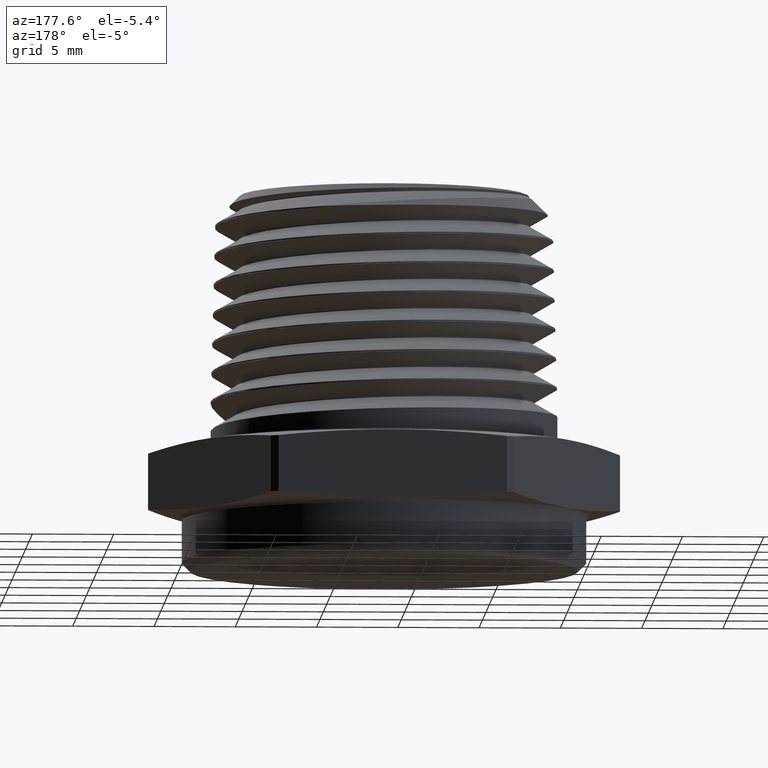
[diagram: clean part render]
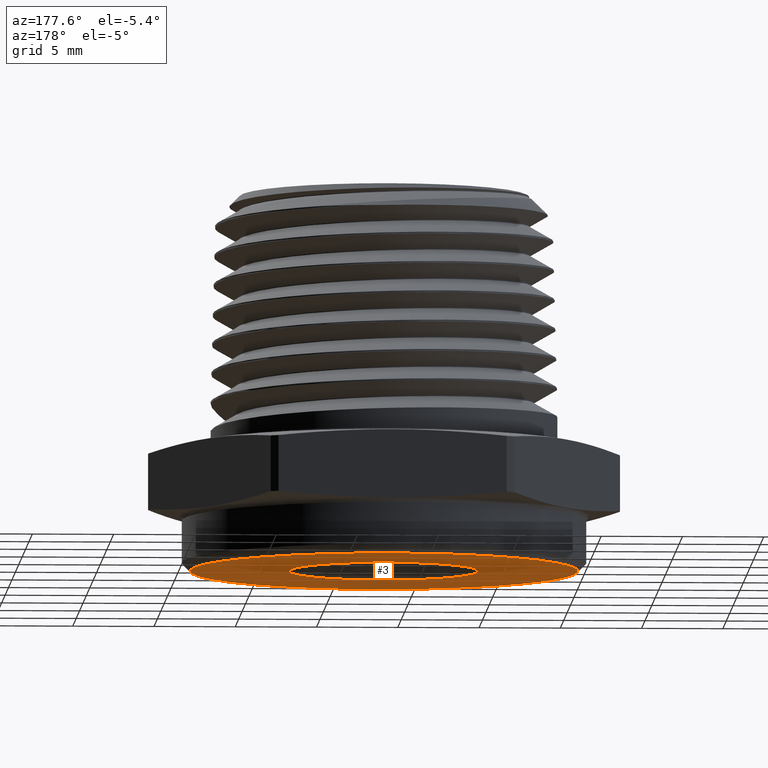
[diagram: same view with one face highlighted and labeled with its STEP entity id]
A machine part, auxiliary view. The second image highlights one B-rep face of the part: STEP entity #3.
In plain terms, the highlighted planar face has unit normal (0, 0, -1).
Its self-contained STEP definition (entity closure, byte-faithful):
#3 = ADVANCED_FACE ( 'NONE', ( #2597, #2602 ), #5188, .T. ) ;
#227 = VERTEX_POINT ( 'NONE', #4881 ) ;
#229 = VERTEX_POINT ( 'NONE', #4883 ) ;
#231 = VERTEX_POINT ( 'NONE', #4885 ) ;
#236 = VERTEX_POINT ( 'NONE', #4890 ) ;
#253 = EDGE_LOOP ( 'NONE', ( #3600, #3601 ) ) ;
#261 = EDGE_LOOP ( 'NONE', ( #3598, #3599 ) ) ;
#483 = CARTESIAN_POINT ( 'NONE',  ( 0.0000000000000000000, 0.0000000000000000000, -0.1300000000000000000 ) ) ;
#485 = DIRECTION ( 'NONE',  ( 0.0000000000000000000, 0.0000000000000000000, -1.000000000000000000 ) ) ;
#1549 = CARTESIAN_POINT ( 'NONE',  ( 1.510396341863000100E-018, 0.0000000000000000000, -0.1299999999999999800 ) ) ;
#1550 = DIRECTION ( 'NONE',  ( 0.0000000000000000000, 0.0000000000000000000, 1.000000000000000000 ) ) ;
#1551 = DIRECTION ( 'NONE',  ( 1.000000000000000000, 0.0000000000000000000, 0.0000000000000000000 ) ) ;
#1552 = CARTESIAN_POINT ( 'NONE',  ( 0.0000000000000000000, 0.0000000000000000000, -0.1300000000000000000 ) ) ;
#1553 = DIRECTION ( 'NONE',  ( 0.0000000000000000000, 0.0000000000000000000, -1.000000000000000000 ) ) ;
#1554 = DIRECTION ( 'NONE',  ( -1.000000000000000000, 0.0000000000000000000, 0.0000000000000000000 ) ) ;
#2062 = CARTESIAN_POINT ( 'NONE',  ( 1.510396341863000100E-018, 0.0000000000000000000, -0.1299999999999999800 ) ) ;
#2063 = DIRECTION ( 'NONE',  ( 0.0000000000000000000, 0.0000000000000000000, 1.000000000000000000 ) ) ;
#2064 = DIRECTION ( 'NONE',  ( 1.000000000000000000, 0.0000000000000000000, 0.0000000000000000000 ) ) ;
#2072 = CARTESIAN_POINT ( 'NONE',  ( 0.0000000000000000000, 0.0000000000000000000, -0.1300000000000000000 ) ) ;
#2073 = DIRECTION ( 'NONE',  ( 0.0000000000000000000, 0.0000000000000000000, -1.000000000000000000 ) ) ;
#2074 = DIRECTION ( 'NONE',  ( -1.000000000000000000, 0.0000000000000000000, 0.0000000000000000000 ) ) ;
#2597 = FACE_BOUND ( 'NONE', #261, .T. ) ;
#2602 = FACE_OUTER_BOUND ( 'NONE', #253, .T. ) ;
#2696 = CIRCLE ( 'NONE', #3066, 0.4700000000000011900 ) ;
#2699 = CIRCLE ( 'NONE', #3065, 0.2299999999999998400 ) ;
#2713 = CIRCLE ( 'NONE', #3070, 0.2299999999999998400 ) ;
#2722 = CIRCLE ( 'NONE', #3072, 0.4700000000000011900 ) ;
#3065 = AXIS2_PLACEMENT_3D ( 'NONE', #1549, #1550, #1551 ) ;
#3066 = AXIS2_PLACEMENT_3D ( 'NONE', #1552, #1553, #1554 ) ;
#3070 = AXIS2_PLACEMENT_3D ( 'NONE', #2062, #2063, #2064 ) ;
#3072 = AXIS2_PLACEMENT_3D ( 'NONE', #2072, #2073, #2074 ) ;
#3133 = EDGE_CURVE ( 'NONE', #229, #236, #2699, .T. ) ;
#3134 = EDGE_CURVE ( 'NONE', #227, #231, #2696, .T. ) ;
#3146 = EDGE_CURVE ( 'NONE', #236, #229, #2713, .T. ) ;
#3151 = EDGE_CURVE ( 'NONE', #231, #227, #2722, .T. ) ;
#3211 = AXIS2_PLACEMENT_3D ( 'NONE', #483, #485, #5237 ) ;
#3598 = ORIENTED_EDGE ( 'NONE', *, *, #3146, .T. ) ;
#3599 = ORIENTED_EDGE ( 'NONE', *, *, #3133, .T. ) ;
#3600 = ORIENTED_EDGE ( 'NONE', *, *, #3134, .T. ) ;
#3601 = ORIENTED_EDGE ( 'NONE', *, *, #3151, .T. ) ;
#4881 = CARTESIAN_POINT ( 'NONE',  ( 0.4700000000000011900, 0.0000000000000000000, -0.1300000000000000000 ) ) ;
#4883 = CARTESIAN_POINT ( 'NONE',  ( 0.2299999999999998400, 2.816687638038911700E-017, -0.1299999999999999800 ) ) ;
#4885 = CARTESIAN_POINT ( 'NONE',  ( -0.4700000000000011900, 5.878304635907303300E-017, -0.1300000000000000000 ) ) ;
#4890 = CARTESIAN_POINT ( 'NONE',  ( -0.2299999999999998400, 0.0000000000000000000, -0.1299999999999999800 ) ) ;
#5188 = PLANE ( 'NONE',  #3211 ) ;
#5237 = DIRECTION ( 'NONE',  ( -1.000000000000000000, 0.0000000000000000000, -0.0000000000000000000 ) ) ;